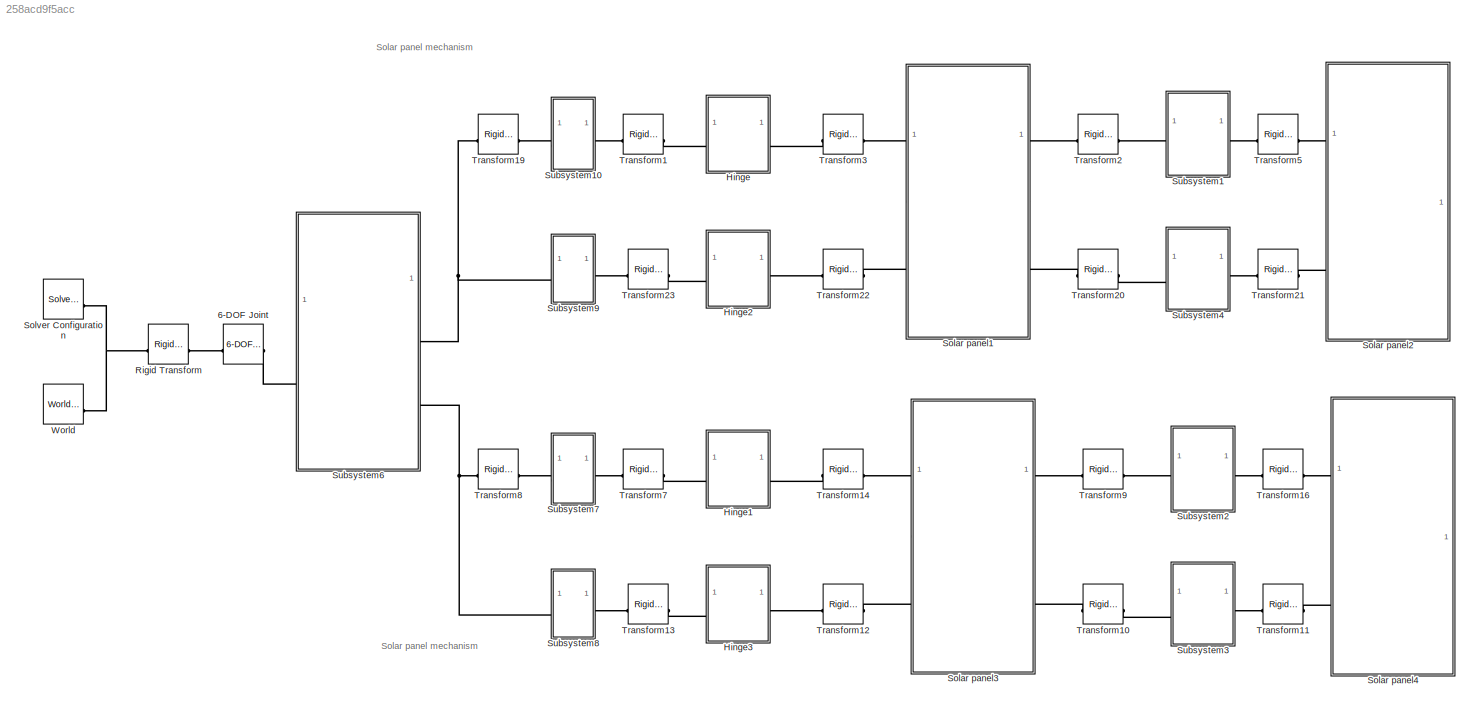
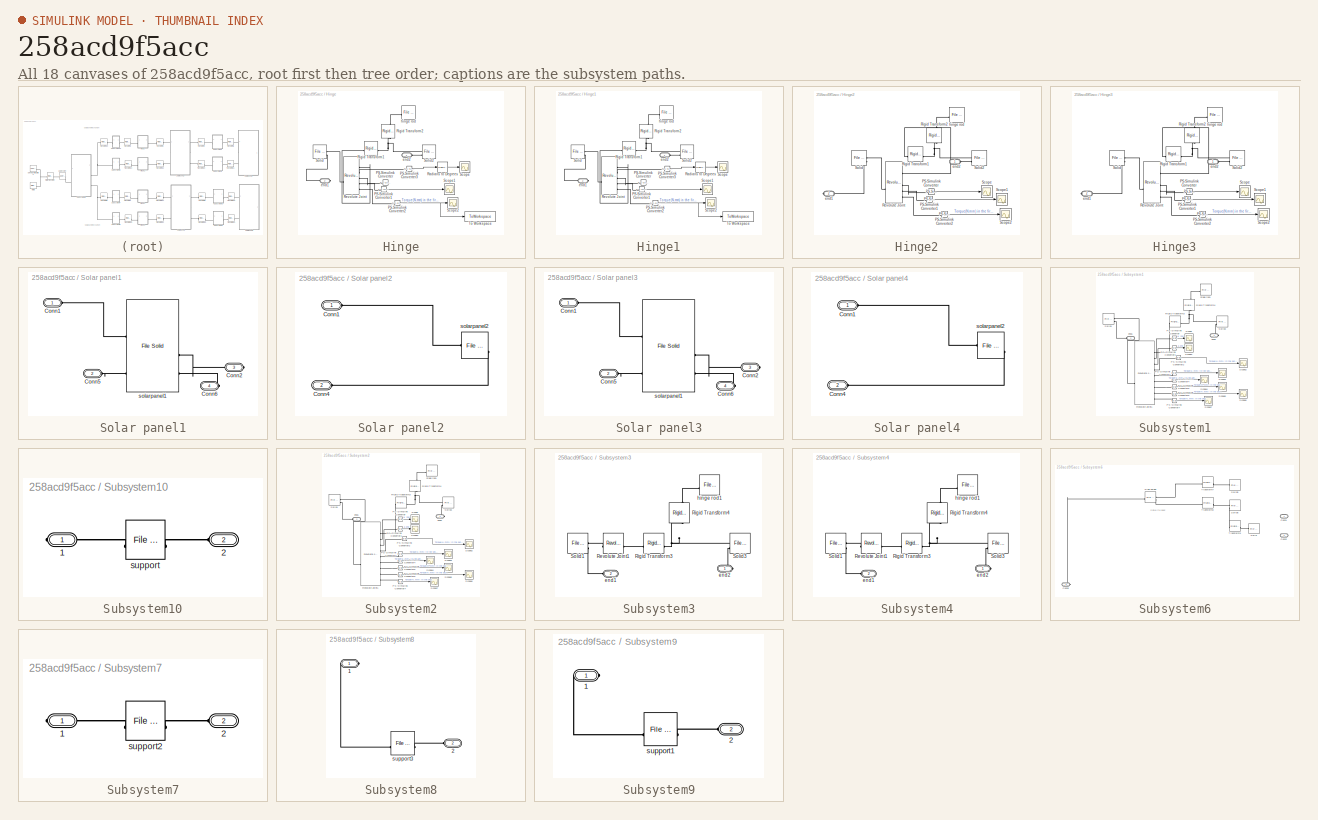
[diagram: thumbnail index - all 18 canvases of the model, root first then tree order]
MODEL slx_258acd9f5acc
KIND model
CONFIG AbsTol = auto
CONFIG EnableMultiTasking = off
CONFIG FixedStep = 0.01
CONFIG MaxStep = auto
CONFIG MinStep = auto
CONFIG RelTol = 1e-3
CONFIG SampleTimeConstraint = Unconstrained
CONFIG SolverName = ode14x
CONFIG StartTime = 0.0
CONFIG StopTime = 6
BLOCK [Reference] 6-DOF Joint  REF=sm_lib/Joints/6-DOF Joint
  SourceBlock = sm_lib/Joints/6-DOF Joint
  SourceType = 6-DOF Joint
BLOCK [SubSystem] Hinge
BLOCK [Reference] Hinge/PS-Simulink Converter  REF=nesl_utility/PS-Simulink
Converter
  SourceBlock = nesl_utility/PS-Simulink\nConverter
  SourceType = PS-Simulink\nConverter
BLOCK [Reference] Hinge/PS-Simulink Converter1  REF=nesl_utility/PS-Simulink
Converter
  SourceBlock = nesl_utility/PS-Simulink\nConverter
  SourceType = PS-Simulink\nConverter
BLOCK [Reference] Hinge/PS-Simulink Converter2  REF=nesl_utility/PS-Simulink
Converter
  SourceBlock = nesl_utility/PS-Simulink\nConverter
  SourceType = PS-Simulink\nConverter
BLOCK [Reference] Hinge/PS-Simulink Converter3  REF=nesl_utility/PS-Simulink
Converter
  SourceBlock = nesl_utility/PS-Simulink\nConverter
  SourceType = PS-Simulink\nConverter
BLOCK [Reference] Hinge/Radians to Degrees  REF=simulink_extras/Transformations/Radians
to Degrees
  SourceBlock = simulink_extras/Transformations/Radians\nto Degrees
  SourceType = RadiansToDegrees
BLOCK [Reference] Hinge/Revolute Joint  REF=sm_lib/Joints/Revolute Joint
  SourceBlock = sm_lib/Joints/Revolute Joint
  SourceType = Revolute Joint
BLOCK [Reference] Hinge/Rigid Transform1  REF=sm_lib/Frames and
Transforms/Rigid
Transform
  NameLocation = top
  SourceBlock = sm_lib/Frames and\nTransforms/Rigid\nTransform
  SourceType = Rigid\nTransform
BLOCK [Reference] Hinge/Rigid Transform2  REF=sm_lib/Frames and
Transforms/Rigid
Transform
  NameLocation = left
  SourceBlock = sm_lib/Frames and\nTransforms/Rigid\nTransform
  SourceType = Rigid\nTransform
BLOCK [Scope] Hinge/Scope
  Floating = off
  NumInputPorts = 1
  ScopeSpecificationString = Simulink.scopes.TimeScopeBlockCfg('CurrentConfiguration', extmgr.ConfigurationSet(extmgr.Configuration('Core','General UI',true),extmgr.Configuration('Core','Source UI',true),extmgr.Configuration('Sources','WiredSimulink',true),extmgr.Configuration('Visuals','Time Domain',true,'SerializedDisplays',{struct('MinYLimReal','-99.14047','MaxYLimReal','8.57','YLabelReal','','MinYLimMag','0.00000','MaxYLi...<+1481ch>
BLOCK [Scope] Hinge/Scope1
  Floating = off
  NumInputPorts = 1
  ScopeSpecificationString = Simulink.scopes.TimeScopeBlockCfg('CurrentConfiguration', extmgr.ConfigurationSet(extmgr.Configuration('Core','General UI',true),extmgr.Configuration('Core','Source UI',true),extmgr.Configuration('Sources','WiredSimulink',true,'DataLoggingVariableName','ScopeData1'),extmgr.Configuration('Visuals','Time Domain',true,'SerializedDisplays',{struct('MinYLimReal','-1753.28291','MaxYLimReal','197.04192',...<+1518ch>  <repeated x4 — deduplicated; at blocks: Scope1>
BLOCK [Scope] Hinge/Scope2
  Floating = off
  NumInputPorts = 1
  ScopeSpecificationString = Simulink.scopes.TimeScopeBlockCfg('CurrentConfiguration', extmgr.ConfigurationSet(extmgr.Configuration('Core','General UI',true),extmgr.Configuration('Core','Source UI',true),extmgr.Configuration('Sources','WiredSimulink',true,'DataLoggingVariableName','ScopeData4'),extmgr.Configuration('Visuals','Time Domain',true,'SerializedDisplays',{struct('MinYLimReal','-3.00037','MaxYLimReal','1.0055','YLabe...<+2082ch>
BLOCK [Reference] Hinge/Solid  REF=sm_lib/Body Elements/File Solid
  NameLocation = top
  SourceBlock = sm_lib/Body Elements/File Solid
  SourceType = File Solid
BLOCK [Reference] Hinge/Solid2  REF=sm_lib/Body Elements/File Solid
  SourceBlock = sm_lib/Body Elements/File Solid
  SourceType = File Solid
BLOCK [ToWorkspace] Hinge/To Workspace
  FixptAsFi = on
  MaxDataPoints = inf
  SampleTime = -1
  SaveFormat = Timeseries
  VariableName = simout
BLOCK [PMIOPort] Hinge/end1
  Port = 2
  Side = Right
BLOCK [PMIOPort] Hinge/end2
  Side = Left
BLOCK [Reference] Hinge/hinge rod  REF=sm_lib/Body Elements/File Solid
  SourceBlock = sm_lib/Body Elements/File Solid
  SourceType = File Solid
BLOCK [SubSystem] Hinge1
BLOCK [Reference] Hinge1/PS-Simulink Converter  REF=nesl_utility/PS-Simulink
Converter
  SourceBlock = nesl_utility/PS-Simulink\nConverter
  SourceType = PS-Simulink\nConverter
BLOCK [Reference] Hinge1/PS-Simulink Converter1  REF=nesl_utility/PS-Simulink
Converter
  SourceBlock = nesl_utility/PS-Simulink\nConverter
  SourceType = PS-Simulink\nConverter
BLOCK [Reference] Hinge1/PS-Simulink Converter2  REF=nesl_utility/PS-Simulink
Converter
  SourceBlock = nesl_utility/PS-Simulink\nConverter
  SourceType = PS-Simulink\nConverter
BLOCK [Reference] Hinge1/PS-Simulink Converter3  REF=nesl_utility/PS-Simulink
Converter
  SourceBlock = nesl_utility/PS-Simulink\nConverter
  SourceType = PS-Simulink\nConverter
BLOCK [Reference] Hinge1/Radians to Degrees  REF=simulink_extras/Transformations/Radians
to Degrees
  SourceBlock = simulink_extras/Transformations/Radians\nto Degrees
  SourceType = RadiansToDegrees
BLOCK [Reference] Hinge1/Revolute Joint  REF=sm_lib/Joints/Revolute Joint
  SourceBlock = sm_lib/Joints/Revolute Joint
  SourceType = Revolute Joint
BLOCK [Reference] Hinge1/Rigid Transform1  REF=sm_lib/Frames and
Transforms/Rigid
Transform
  NameLocation = top
  SourceBlock = sm_lib/Frames and\nTransforms/Rigid\nTransform
  SourceType = Rigid\nTransform
BLOCK [Reference] Hinge1/Rigid Transform2  REF=sm_lib/Frames and
Transforms/Rigid
Transform
  NameLocation = left
  SourceBlock = sm_lib/Frames and\nTransforms/Rigid\nTransform
  SourceType = Rigid\nTransform
BLOCK [Scope] Hinge1/Scope
  Floating = off
  NumInputPorts = 1
  ScopeSpecificationString = Simulink.scopes.TimeScopeBlockCfg('CurrentConfiguration', extmgr.ConfigurationSet(extmgr.Configuration('Core','General UI',true),extmgr.Configuration('Core','Source UI',true),extmgr.Configuration('Sources','WiredSimulink',true),extmgr.Configuration('Visuals','Time Domain',true,'SerializedDisplays',{struct('MinYLimReal','-99.14047','MaxYLimReal','8.57','YLabelReal','','MinYLimMag','0.00000','MaxYLi...<+1481ch>
BLOCK [Scope] Hinge1/Scope1
  Floating = off
  NumInputPorts = 1
BLOCK [Scope] Hinge1/Scope2
  Floating = off
  NumInputPorts = 1
  ScopeSpecificationString = Simulink.scopes.TimeScopeBlockCfg('CurrentConfiguration', extmgr.ConfigurationSet(extmgr.Configuration('Core','General UI',true),extmgr.Configuration('Core','Source UI',true),extmgr.Configuration('Sources','WiredSimulink',true,'DataLoggingVariableName','ScopeData4'),extmgr.Configuration('Visuals','Time Domain',true,'SerializedDisplays',{struct('MinYLimReal','-3.00037','MaxYLimReal','1.0055','YLabe...<+2082ch>
BLOCK [Reference] Hinge1/Solid  REF=sm_lib/Body Elements/File Solid
  NameLocation = top
  SourceBlock = sm_lib/Body Elements/File Solid
  SourceType = File Solid
BLOCK [Reference] Hinge1/Solid2  REF=sm_lib/Body Elements/File Solid
  SourceBlock = sm_lib/Body Elements/File Solid
  SourceType = File Solid
BLOCK [ToWorkspace] Hinge1/To Workspace
  FixptAsFi = on
  MaxDataPoints = inf
  SampleTime = -1
  SaveFormat = Timeseries
  VariableName = simout
BLOCK [PMIOPort] Hinge1/end1
  Port = 2
  Side = Right
BLOCK [PMIOPort] Hinge1/end2
  Side = Left
BLOCK [Reference] Hinge1/hinge rod  REF=sm_lib/Body Elements/File Solid
  SourceBlock = sm_lib/Body Elements/File Solid
  SourceType = File Solid
BLOCK [SubSystem] Hinge2
BLOCK [Reference] Hinge2/PS-Simulink Converter  REF=nesl_utility/PS-Simulink
Converter
  SourceBlock = nesl_utility/PS-Simulink\nConverter
  SourceType = PS-Simulink\nConverter
BLOCK [Reference] Hinge2/PS-Simulink Converter1  REF=nesl_utility/PS-Simulink
Converter
  SourceBlock = nesl_utility/PS-Simulink\nConverter
  SourceType = PS-Simulink\nConverter
BLOCK [Reference] Hinge2/PS-Simulink Converter2  REF=nesl_utility/PS-Simulink
Converter
  SourceBlock = nesl_utility/PS-Simulink\nConverter
  SourceType = PS-Simulink\nConverter
BLOCK [Reference] Hinge2/Revolute Joint  REF=sm_lib/Joints/Revolute Joint
  SourceBlock = sm_lib/Joints/Revolute Joint
  SourceType = Revolute Joint
BLOCK [Reference] Hinge2/Rigid Transform1  REF=sm_lib/Frames and
Transforms/Rigid
Transform
  NameLocation = top
  SourceBlock = sm_lib/Frames and\nTransforms/Rigid\nTransform
  SourceType = Rigid\nTransform
BLOCK [Reference] Hinge2/Rigid Transform2  REF=sm_lib/Frames and
Transforms/Rigid
Transform
  NameLocation = left
  SourceBlock = sm_lib/Frames and\nTransforms/Rigid\nTransform
  SourceType = Rigid\nTransform
BLOCK [Scope] Hinge2/Scope
  Floating = off
  NumInputPorts = 1
  ScopeSpecificationString = Simulink.scopes.TimeScopeBlockCfg('CurrentConfiguration', extmgr.ConfigurationSet(extmgr.Configuration('Core','General UI',true),extmgr.Configuration('Core','Source UI',true),extmgr.Configuration('Sources','WiredSimulink',true),extmgr.Configuration('Visuals','Time Domain',true,'SerializedDisplays',{struct('MinYLimReal','-0.18366','MaxYLimReal','1.65292','YLabelReal','','MinYLimMag','0.00000','MaxY...<+1430ch>
BLOCK [Scope] Hinge2/Scope1
  Floating = off
  NumInputPorts = 1
BLOCK [Scope] Hinge2/Scope2
  Floating = off
  NumInputPorts = 1
  ScopeSpecificationString = Simulink.scopes.TimeScopeBlockCfg('CurrentConfiguration', extmgr.ConfigurationSet(extmgr.Configuration('Core','General UI',true),extmgr.Configuration('Core','Source UI',true),extmgr.Configuration('Sources','WiredSimulink',true,'DataLoggingVariableName','ScopeData4'),extmgr.Configuration('Visuals','Time Domain',true,'SerializedDisplays',{struct('MinYLimReal','-1.60374','MaxYLimReal','0.83366','YLab...<+2029ch>
BLOCK [Reference] Hinge2/Solid  REF=sm_lib/Body Elements/File Solid
  NameLocation = top
  SourceBlock = sm_lib/Body Elements/File Solid
  SourceType = File Solid
BLOCK [Reference] Hinge2/Solid2  REF=sm_lib/Body Elements/File Solid
  SourceBlock = sm_lib/Body Elements/File Solid
  SourceType = File Solid
BLOCK [PMIOPort] Hinge2/end1
  NameLocation = top
  Port = 2
  Side = Right
BLOCK [PMIOPort] Hinge2/end2
  Side = Left
BLOCK [Reference] Hinge2/hinge rod  REF=sm_lib/Body Elements/File Solid
  SourceBlock = sm_lib/Body Elements/File Solid
  SourceType = File Solid
BLOCK [SubSystem] Hinge3
BLOCK [Reference] Hinge3/PS-Simulink Converter  REF=nesl_utility/PS-Simulink
Converter
  SourceBlock = nesl_utility/PS-Simulink\nConverter
  SourceType = PS-Simulink\nConverter
BLOCK [Reference] Hinge3/PS-Simulink Converter1  REF=nesl_utility/PS-Simulink
Converter
  SourceBlock = nesl_utility/PS-Simulink\nConverter
  SourceType = PS-Simulink\nConverter
BLOCK [Reference] Hinge3/PS-Simulink Converter2  REF=nesl_utility/PS-Simulink
Converter
  SourceBlock = nesl_utility/PS-Simulink\nConverter
  SourceType = PS-Simulink\nConverter
BLOCK [Reference] Hinge3/Revolute Joint  REF=sm_lib/Joints/Revolute Joint
  SourceBlock = sm_lib/Joints/Revolute Joint
  SourceType = Revolute Joint
BLOCK [Reference] Hinge3/Rigid Transform1  REF=sm_lib/Frames and
Transforms/Rigid
Transform
  NameLocation = top
  SourceBlock = sm_lib/Frames and\nTransforms/Rigid\nTransform
  SourceType = Rigid\nTransform
BLOCK [Reference] Hinge3/Rigid Transform2  REF=sm_lib/Frames and
Transforms/Rigid
Transform
  NameLocation = left
  SourceBlock = sm_lib/Frames and\nTransforms/Rigid\nTransform
  SourceType = Rigid\nTransform
BLOCK [Scope] Hinge3/Scope
  Floating = off
  NumInputPorts = 1
  ScopeSpecificationString = Simulink.scopes.TimeScopeBlockCfg('CurrentConfiguration', extmgr.ConfigurationSet(extmgr.Configuration('Core','General UI',true),extmgr.Configuration('Core','Source UI',true),extmgr.Configuration('Sources','WiredSimulink',true),extmgr.Configuration('Visuals','Time Domain',true,'SerializedDisplays',{struct('MinYLimReal','-0.18366','MaxYLimReal','1.65292','YLabelReal','','MinYLimMag','0.00000','MaxY...<+1430ch>
BLOCK [Scope] Hinge3/Scope1
  Floating = off
  NumInputPorts = 1
BLOCK [Scope] Hinge3/Scope2
  Floating = off
  NumInputPorts = 1
  ScopeSpecificationString = Simulink.scopes.TimeScopeBlockCfg('CurrentConfiguration', extmgr.ConfigurationSet(extmgr.Configuration('Core','General UI',true),extmgr.Configuration('Core','Source UI',true),extmgr.Configuration('Sources','WiredSimulink',true,'DataLoggingVariableName','ScopeData4'),extmgr.Configuration('Visuals','Time Domain',true,'SerializedDisplays',{struct('MinYLimReal','-1.60374','MaxYLimReal','0.83366','YLab...<+2029ch>
BLOCK [Reference] Hinge3/Solid  REF=sm_lib/Body Elements/File Solid
  NameLocation = top
  SourceBlock = sm_lib/Body Elements/File Solid
  SourceType = File Solid
BLOCK [Reference] Hinge3/Solid2  REF=sm_lib/Body Elements/File Solid
  SourceBlock = sm_lib/Body Elements/File Solid
  SourceType = File Solid
BLOCK [PMIOPort] Hinge3/end1
  NameLocation = top
  Port = 2
  Side = Right
BLOCK [PMIOPort] Hinge3/end2
  Side = Left
BLOCK [Reference] Hinge3/hinge rod  REF=sm_lib/Body Elements/File Solid
  SourceBlock = sm_lib/Body Elements/File Solid
  SourceType = File Solid
BLOCK [Reference] Rigid Transform  REF=sm_lib/Frames and
Transforms/Rigid
Transform
  SourceBlock = sm_lib/Frames and\nTransforms/Rigid\nTransform
  SourceType = Rigid\nTransform
BLOCK [SubSystem] Solar panel1
BLOCK [PMIOPort] Solar panel1/Conn1
  Side = Left
BLOCK [PMIOPort] Solar panel1/Conn2
  Port = 3
  Side = Right
BLOCK [PMIOPort] Solar panel1/Conn5
  Port = 2
  Side = Left
BLOCK [PMIOPort] Solar panel1/Conn6
  Port = 4
  Side = Right
BLOCK [Reference] Solar panel1/solarpanel1  REF=sm_lib/Body Elements/File Solid
  SourceBlock = sm_lib/Body Elements/File Solid
  SourceType = File Solid
BLOCK [SubSystem] Solar panel2
BLOCK [PMIOPort] Solar panel2/Conn1
  Side = Left
BLOCK [PMIOPort] Solar panel2/Conn4
  Port = 2
  Side = Left
BLOCK [Reference] Solar panel2/solarpanel2  REF=sm_lib/Body Elements/File Solid
  SourceBlock = sm_lib/Body Elements/File Solid
  SourceType = File Solid
BLOCK [SubSystem] Solar panel3
BLOCK [PMIOPort] Solar panel3/Conn1
  Side = Left
BLOCK [PMIOPort] Solar panel3/Conn2
  Port = 3
  Side = Right
BLOCK [PMIOPort] Solar panel3/Conn5
  Port = 2
  Side = Left
BLOCK [PMIOPort] Solar panel3/Conn6
  Port = 4
  Side = Right
BLOCK [Reference] Solar panel3/solarpanel1  REF=sm_lib/Body Elements/File Solid
  SourceBlock = sm_lib/Body Elements/File Solid
  SourceType = File Solid
BLOCK [SubSystem] Solar panel4
BLOCK [PMIOPort] Solar panel4/Conn1
  Side = Left
BLOCK [PMIOPort] Solar panel4/Conn4
  Port = 2
  Side = Left
BLOCK [Reference] Solar panel4/solarpanel2  REF=sm_lib/Body Elements/File Solid
  SourceBlock = sm_lib/Body Elements/File Solid
  SourceType = File Solid
BLOCK [Reference] Solver Configuration  REF=nesl_utility/Solver
Configuration
  SourceBlock = nesl_utility/Solver\nConfiguration
  SourceType = Solver\nConfiguration
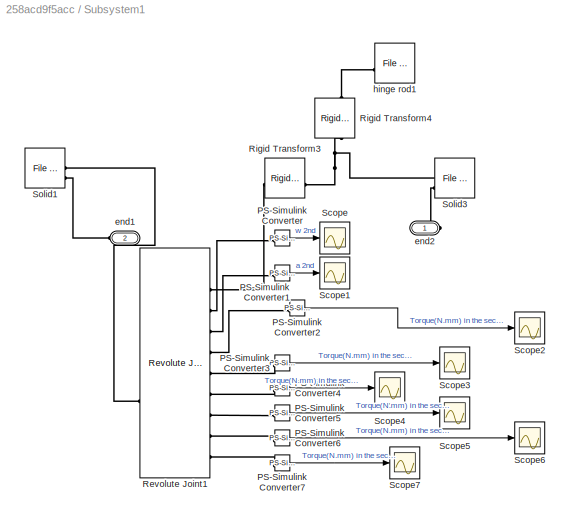
BLOCK [SubSystem] Subsystem1
  NameLocation = top
BLOCK [Reference] Subsystem1/PS-Simulink Converter  REF=nesl_utility/PS-Simulink
Converter
  SourceBlock = nesl_utility/PS-Simulink\nConverter
  SourceType = PS-Simulink\nConverter
BLOCK [Reference] Subsystem1/PS-Simulink Converter1  REF=nesl_utility/PS-Simulink
Converter
  SourceBlock = nesl_utility/PS-Simulink\nConverter
  SourceType = PS-Simulink\nConverter
BLOCK [Reference] Subsystem1/PS-Simulink Converter2  REF=nesl_utility/PS-Simulink
Converter
  SourceBlock = nesl_utility/PS-Simulink\nConverter
  SourceType = PS-Simulink\nConverter
BLOCK [Reference] Subsystem1/PS-Simulink Converter3  REF=nesl_utility/PS-Simulink
Converter
  SourceBlock = nesl_utility/PS-Simulink\nConverter
  SourceType = PS-Simulink\nConverter
BLOCK [Reference] Subsystem1/PS-Simulink Converter4  REF=nesl_utility/PS-Simulink
Converter
  SourceBlock = nesl_utility/PS-Simulink\nConverter
  SourceType = PS-Simulink\nConverter
BLOCK [Reference] Subsystem1/PS-Simulink Converter5  REF=nesl_utility/PS-Simulink
Converter
  SourceBlock = nesl_utility/PS-Simulink\nConverter
  SourceType = PS-Simulink\nConverter
BLOCK [Reference] Subsystem1/PS-Simulink Converter6  REF=nesl_utility/PS-Simulink
Converter
  SourceBlock = nesl_utility/PS-Simulink\nConverter
  SourceType = PS-Simulink\nConverter
BLOCK [Reference] Subsystem1/PS-Simulink Converter7  REF=nesl_utility/PS-Simulink
Converter
  SourceBlock = nesl_utility/PS-Simulink\nConverter
  SourceType = PS-Simulink\nConverter
BLOCK [Reference] Subsystem1/Revolute Joint1  REF=sm_lib/Joints/Revolute Joint
  SourceBlock = sm_lib/Joints/Revolute Joint
  SourceType = Revolute Joint
BLOCK [Reference] Subsystem1/Rigid Transform3  REF=sm_lib/Frames and
Transforms/Rigid
Transform
  NameLocation = top
  SourceBlock = sm_lib/Frames and\nTransforms/Rigid\nTransform
  SourceType = Rigid\nTransform
BLOCK [Reference] Subsystem1/Rigid Transform4  REF=sm_lib/Frames and
Transforms/Rigid
Transform
  NameLocation = left
  SourceBlock = sm_lib/Frames and\nTransforms/Rigid\nTransform
  SourceType = Rigid\nTransform
BLOCK [Scope] Subsystem1/Scope
  Floating = off
  NumInputPorts = 1
  ScopeSpecificationString = Simulink.scopes.TimeScopeBlockCfg('CurrentConfiguration', extmgr.ConfigurationSet(extmgr.Configuration('Core','General UI',true),extmgr.Configuration('Core','Source UI',true),extmgr.Configuration('Sources','WiredSimulink',true,'DataLoggingVariableName','ScopeData2'),extmgr.Configuration('Visuals','Time Domain',true,'SerializedDisplays',{struct('MinYLimReal','-0.19409','MaxYLimReal','1.74681','YLab...<+1453ch>
BLOCK [Scope] Subsystem1/Scope1
  Floating = off
  NumInputPorts = 1
  ScopeSpecificationString = Simulink.scopes.TimeScopeBlockCfg('CurrentConfiguration', extmgr.ConfigurationSet(extmgr.Configuration('Core','General UI',true),extmgr.Configuration('Core','Source UI',true),extmgr.Configuration('Sources','WiredSimulink',true,'DataLoggingVariableName','ScopeData3'),extmgr.Configuration('Visuals','Time Domain',true,'SerializedDisplays',{struct('MinYLimReal','-4.51119','MaxYLimReal','-2.09509','YLa...<+1553ch>
BLOCK [Scope] Subsystem1/Scope2
  Floating = off
  NumInputPorts = 1
  ScopeSpecificationString = Simulink.scopes.TimeScopeBlockCfg('CurrentConfiguration', extmgr.ConfigurationSet(extmgr.Configuration('Core','General UI',true),extmgr.Configuration('Core','Source UI',true),extmgr.Configuration('Sources','WiredSimulink',true,'DataLoggingVariableName','ScopeData5'),extmgr.Configuration('Visuals','Time Domain',true,'SerializedDisplays',{struct('MinYLimReal','-1.00000','MaxYLimReal','1.00000','YLab...<+1958ch>
BLOCK [Scope] Subsystem1/Scope3
  Floating = off
  NumInputPorts = 1
  ScopeSpecificationString = Simulink.scopes.TimeScopeBlockCfg('CurrentConfiguration', extmgr.ConfigurationSet(extmgr.Configuration('Core','General UI',true),extmgr.Configuration('Core','Source UI',true),extmgr.Configuration('Sources','WiredSimulink',true,'DataLoggingVariableName','ScopeData1'),extmgr.Configuration('Visuals','Time Domain',true,'SerializedDisplays',{struct('MinYLimReal','-1.00000','MaxYLimReal','1.00000','YLab...<+1958ch>
BLOCK [Scope] Subsystem1/Scope4
  Floating = off
  NumInputPorts = 1
  ScopeSpecificationString = Simulink.scopes.TimeScopeBlockCfg('CurrentConfiguration', extmgr.ConfigurationSet(extmgr.Configuration('Core','General UI',true),extmgr.Configuration('Core','Source UI',true),extmgr.Configuration('Sources','WiredSimulink',true,'DataLoggingVariableName','ScopeData2'),extmgr.Configuration('Visuals','Time Domain',true,'SerializedDisplays',{struct('MinYLimReal','-3644.6639','MaxYLimReal','4321.97514',...<+1978ch>
BLOCK [Scope] Subsystem1/Scope5
  Floating = off
  NumInputPorts = 1
  ScopeSpecificationString = Simulink.scopes.TimeScopeBlockCfg('CurrentConfiguration', extmgr.ConfigurationSet(extmgr.Configuration('Core','General UI',true),extmgr.Configuration('Core','Source UI',true),extmgr.Configuration('Sources','WiredSimulink',true,'DataLoggingVariableName','ScopeData3'),extmgr.Configuration('Visuals','Time Domain',true,'SerializedDisplays',{struct('MinYLimReal','-3644.6639','MaxYLimReal','4321.97514',...<+2054ch>
BLOCK [Scope] Subsystem1/Scope6
  Floating = off
  NumInputPorts = 1
  ScopeSpecificationString = Simulink.scopes.TimeScopeBlockCfg('CurrentConfiguration', extmgr.ConfigurationSet(extmgr.Configuration('Core','General UI',true),extmgr.Configuration('Core','Source UI',true),extmgr.Configuration('Sources','WiredSimulink',true,'DataLoggingVariableName','ScopeData4'),extmgr.Configuration('Visuals','Time Domain',true,'SerializedDisplays',{struct('MinYLimReal','-50.59757','MaxYLimReal','6.53088','YLa...<+2038ch>
BLOCK [Scope] Subsystem1/Scope7
  Floating = off
  NumInputPorts = 1
  ScopeSpecificationString = Simulink.scopes.TimeScopeBlockCfg('CurrentConfiguration', extmgr.ConfigurationSet(extmgr.Configuration('Core','General UI',true),extmgr.Configuration('Core','Source UI',true),extmgr.Configuration('Sources','WiredSimulink',true,'DataLoggingVariableName','ScopeData5'),extmgr.Configuration('Visuals','Time Domain',true,'SerializedDisplays',{struct('MinYLimReal','-0.99336','MaxYLimReal','1.46729','YLab...<+2084ch>
BLOCK [Reference] Subsystem1/Solid1  REF=sm_lib/Body Elements/File Solid
  NameLocation = top
  SourceBlock = sm_lib/Body Elements/File Solid
  SourceType = File Solid
BLOCK [Reference] Subsystem1/Solid3  REF=sm_lib/Body Elements/File Solid
  SourceBlock = sm_lib/Body Elements/File Solid
  SourceType = File Solid
BLOCK [PMIOPort] Subsystem1/end1
  Port = 2
  Side = Left
BLOCK [PMIOPort] Subsystem1/end2
  Side = Right
BLOCK [Reference] Subsystem1/hinge rod1  REF=sm_lib/Body Elements/File Solid
  SourceBlock = sm_lib/Body Elements/File Solid
  SourceType = File Solid
BLOCK [SubSystem] Subsystem10
BLOCK [PMIOPort] Subsystem10/1
  Side = Right
BLOCK [PMIOPort] Subsystem10/2
  Port = 2
  Side = Left
BLOCK [Reference] Subsystem10/support  REF=sm_lib/Body Elements/File Solid
  NameLocation = top
  SourceBlock = sm_lib/Body Elements/File Solid
  SourceType = File Solid
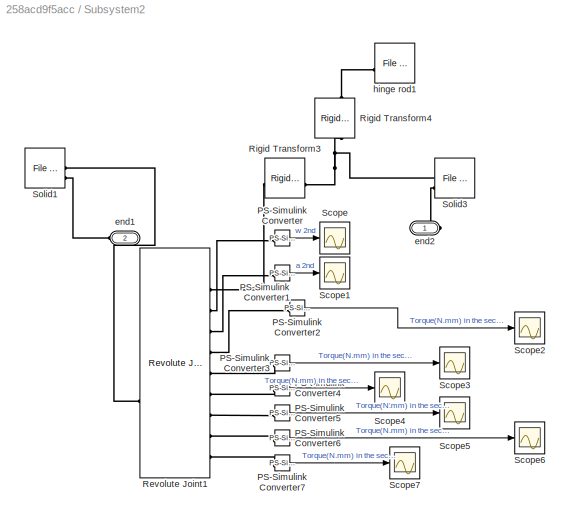
BLOCK [SubSystem] Subsystem2
  NameLocation = top
BLOCK [Reference] Subsystem2/PS-Simulink Converter  REF=nesl_utility/PS-Simulink
Converter
  SourceBlock = nesl_utility/PS-Simulink\nConverter
  SourceType = PS-Simulink\nConverter
BLOCK [Reference] Subsystem2/PS-Simulink Converter1  REF=nesl_utility/PS-Simulink
Converter
  SourceBlock = nesl_utility/PS-Simulink\nConverter
  SourceType = PS-Simulink\nConverter
BLOCK [Reference] Subsystem2/PS-Simulink Converter2  REF=nesl_utility/PS-Simulink
Converter
  SourceBlock = nesl_utility/PS-Simulink\nConverter
  SourceType = PS-Simulink\nConverter
BLOCK [Reference] Subsystem2/PS-Simulink Converter3  REF=nesl_utility/PS-Simulink
Converter
  SourceBlock = nesl_utility/PS-Simulink\nConverter
  SourceType = PS-Simulink\nConverter
BLOCK [Reference] Subsystem2/PS-Simulink Converter4  REF=nesl_utility/PS-Simulink
Converter
  SourceBlock = nesl_utility/PS-Simulink\nConverter
  SourceType = PS-Simulink\nConverter
BLOCK [Reference] Subsystem2/PS-Simulink Converter5  REF=nesl_utility/PS-Simulink
Converter
  SourceBlock = nesl_utility/PS-Simulink\nConverter
  SourceType = PS-Simulink\nConverter
BLOCK [Reference] Subsystem2/PS-Simulink Converter6  REF=nesl_utility/PS-Simulink
Converter
  SourceBlock = nesl_utility/PS-Simulink\nConverter
  SourceType = PS-Simulink\nConverter
BLOCK [Reference] Subsystem2/PS-Simulink Converter7  REF=nesl_utility/PS-Simulink
Converter
  SourceBlock = nesl_utility/PS-Simulink\nConverter
  SourceType = PS-Simulink\nConverter
BLOCK [Reference] Subsystem2/Revolute Joint1  REF=sm_lib/Joints/Revolute Joint
  SourceBlock = sm_lib/Joints/Revolute Joint
  SourceType = Revolute Joint
BLOCK [Reference] Subsystem2/Rigid Transform3  REF=sm_lib/Frames and
Transforms/Rigid
Transform
  NameLocation = top
  SourceBlock = sm_lib/Frames and\nTransforms/Rigid\nTransform
  SourceType = Rigid\nTransform
BLOCK [Reference] Subsystem2/Rigid Transform4  REF=sm_lib/Frames and
Transforms/Rigid
Transform
  NameLocation = left
  SourceBlock = sm_lib/Frames and\nTransforms/Rigid\nTransform
  SourceType = Rigid\nTransform
BLOCK [Scope] Subsystem2/Scope
  Floating = off
  NumInputPorts = 1
  ScopeSpecificationString = Simulink.scopes.TimeScopeBlockCfg('CurrentConfiguration', extmgr.ConfigurationSet(extmgr.Configuration('Core','General UI',true),extmgr.Configuration('Core','Source UI',true),extmgr.Configuration('Sources','WiredSimulink',true,'DataLoggingVariableName','ScopeData2'),extmgr.Configuration('Visuals','Time Domain',true,'SerializedDisplays',{struct('MinYLimReal','-0.19409','MaxYLimReal','1.74681','YLab...<+1453ch>
BLOCK [Scope] Subsystem2/Scope1
  Floating = off
  NumInputPorts = 1
  ScopeSpecificationString = Simulink.scopes.TimeScopeBlockCfg('CurrentConfiguration', extmgr.ConfigurationSet(extmgr.Configuration('Core','General UI',true),extmgr.Configuration('Core','Source UI',true),extmgr.Configuration('Sources','WiredSimulink',true,'DataLoggingVariableName','ScopeData3'),extmgr.Configuration('Visuals','Time Domain',true,'SerializedDisplays',{struct('MinYLimReal','-4.51119','MaxYLimReal','-2.09509','YLa...<+1553ch>
BLOCK [Scope] Subsystem2/Scope2
  Floating = off
  NumInputPorts = 1
  ScopeSpecificationString = Simulink.scopes.TimeScopeBlockCfg('CurrentConfiguration', extmgr.ConfigurationSet(extmgr.Configuration('Core','General UI',true),extmgr.Configuration('Core','Source UI',true),extmgr.Configuration('Sources','WiredSimulink',true,'DataLoggingVariableName','ScopeData5'),extmgr.Configuration('Visuals','Time Domain',true,'SerializedDisplays',{struct('MinYLimReal','-1.00000','MaxYLimReal','1.00000','YLab...<+1958ch>
BLOCK [Scope] Subsystem2/Scope3
  Floating = off
  NumInputPorts = 1
  ScopeSpecificationString = Simulink.scopes.TimeScopeBlockCfg('CurrentConfiguration', extmgr.ConfigurationSet(extmgr.Configuration('Core','General UI',true),extmgr.Configuration('Core','Source UI',true),extmgr.Configuration('Sources','WiredSimulink',true,'DataLoggingVariableName','ScopeData1'),extmgr.Configuration('Visuals','Time Domain',true,'SerializedDisplays',{struct('MinYLimReal','-1.00000','MaxYLimReal','1.00000','YLab...<+1958ch>
BLOCK [Scope] Subsystem2/Scope4
  Floating = off
  NumInputPorts = 1
  ScopeSpecificationString = Simulink.scopes.TimeScopeBlockCfg('CurrentConfiguration', extmgr.ConfigurationSet(extmgr.Configuration('Core','General UI',true),extmgr.Configuration('Core','Source UI',true),extmgr.Configuration('Sources','WiredSimulink',true,'DataLoggingVariableName','ScopeData2'),extmgr.Configuration('Visuals','Time Domain',true,'SerializedDisplays',{struct('MinYLimReal','-3644.6639','MaxYLimReal','4321.97514',...<+1978ch>
BLOCK [Scope] Subsystem2/Scope5
  Floating = off
  NumInputPorts = 1
  ScopeSpecificationString = Simulink.scopes.TimeScopeBlockCfg('CurrentConfiguration', extmgr.ConfigurationSet(extmgr.Configuration('Core','General UI',true),extmgr.Configuration('Core','Source UI',true),extmgr.Configuration('Sources','WiredSimulink',true,'DataLoggingVariableName','ScopeData3'),extmgr.Configuration('Visuals','Time Domain',true,'SerializedDisplays',{struct('MinYLimReal','-3644.6639','MaxYLimReal','4321.97514',...<+2054ch>
BLOCK [Scope] Subsystem2/Scope6
  Floating = off
  NumInputPorts = 1
  ScopeSpecificationString = Simulink.scopes.TimeScopeBlockCfg('CurrentConfiguration', extmgr.ConfigurationSet(extmgr.Configuration('Core','General UI',true),extmgr.Configuration('Core','Source UI',true),extmgr.Configuration('Sources','WiredSimulink',true,'DataLoggingVariableName','ScopeData4'),extmgr.Configuration('Visuals','Time Domain',true,'SerializedDisplays',{struct('MinYLimReal','-50.59757','MaxYLimReal','6.53088','YLa...<+2038ch>
BLOCK [Scope] Subsystem2/Scope7
  Floating = off
  NumInputPorts = 1
  ScopeSpecificationString = Simulink.scopes.TimeScopeBlockCfg('CurrentConfiguration', extmgr.ConfigurationSet(extmgr.Configuration('Core','General UI',true),extmgr.Configuration('Core','Source UI',true),extmgr.Configuration('Sources','WiredSimulink',true,'DataLoggingVariableName','ScopeData5'),extmgr.Configuration('Visuals','Time Domain',true,'SerializedDisplays',{struct('MinYLimReal','-0.99336','MaxYLimReal','1.46729','YLab...<+2084ch>
BLOCK [Reference] Subsystem2/Solid1  REF=sm_lib/Body Elements/File Solid
  NameLocation = top
  SourceBlock = sm_lib/Body Elements/File Solid
  SourceType = File Solid
BLOCK [Reference] Subsystem2/Solid3  REF=sm_lib/Body Elements/File Solid
  SourceBlock = sm_lib/Body Elements/File Solid
  SourceType = File Solid
BLOCK [PMIOPort] Subsystem2/end1
  Port = 2
  Side = Left
BLOCK [PMIOPort] Subsystem2/end2
  Side = Right
BLOCK [Reference] Subsystem2/hinge rod1  REF=sm_lib/Body Elements/File Solid
  SourceBlock = sm_lib/Body Elements/File Solid
  SourceType = File Solid
BLOCK [SubSystem] Subsystem3
  NameLocation = top
BLOCK [Reference] Subsystem3/Revolute Joint1  REF=sm_lib/Joints/Revolute Joint
  SourceBlock = sm_lib/Joints/Revolute Joint
  SourceType = Revolute Joint
BLOCK [Reference] Subsystem3/Rigid Transform3  REF=sm_lib/Frames and
Transforms/Rigid
Transform
  NameLocation = top
  SourceBlock = sm_lib/Frames and\nTransforms/Rigid\nTransform
  SourceType = Rigid\nTransform
BLOCK [Reference] Subsystem3/Rigid Transform4  REF=sm_lib/Frames and
Transforms/Rigid
Transform
  NameLocation = left
  SourceBlock = sm_lib/Frames and\nTransforms/Rigid\nTransform
  SourceType = Rigid\nTransform
BLOCK [Reference] Subsystem3/Solid1  REF=sm_lib/Body Elements/File Solid
  NameLocation = top
  SourceBlock = sm_lib/Body Elements/File Solid
  SourceType = File Solid
BLOCK [Reference] Subsystem3/Solid3  REF=sm_lib/Body Elements/File Solid
  SourceBlock = sm_lib/Body Elements/File Solid
  SourceType = File Solid
BLOCK [PMIOPort] Subsystem3/end1
  Port = 2
  Side = Left
BLOCK [PMIOPort] Subsystem3/end2
  Side = Right
BLOCK [Reference] Subsystem3/hinge rod1  REF=sm_lib/Body Elements/File Solid
  SourceBlock = sm_lib/Body Elements/File Solid
  SourceType = File Solid
BLOCK [SubSystem] Subsystem4
  NameLocation = top
BLOCK [Reference] Subsystem4/Revolute Joint1  REF=sm_lib/Joints/Revolute Joint
  SourceBlock = sm_lib/Joints/Revolute Joint
  SourceType = Revolute Joint
BLOCK [Reference] Subsystem4/Rigid Transform3  REF=sm_lib/Frames and
Transforms/Rigid
Transform
  NameLocation = top
  SourceBlock = sm_lib/Frames and\nTransforms/Rigid\nTransform
  SourceType = Rigid\nTransform
BLOCK [Reference] Subsystem4/Rigid Transform4  REF=sm_lib/Frames and
Transforms/Rigid
Transform
  NameLocation = left
  SourceBlock = sm_lib/Frames and\nTransforms/Rigid\nTransform
  SourceType = Rigid\nTransform
BLOCK [Reference] Subsystem4/Solid1  REF=sm_lib/Body Elements/File Solid
  NameLocation = top
  SourceBlock = sm_lib/Body Elements/File Solid
  SourceType = File Solid
BLOCK [Reference] Subsystem4/Solid3  REF=sm_lib/Body Elements/File Solid
  SourceBlock = sm_lib/Body Elements/File Solid
  SourceType = File Solid
BLOCK [PMIOPort] Subsystem4/end1
  Port = 2
  Side = Left
BLOCK [PMIOPort] Subsystem4/end2
  Side = Right
BLOCK [Reference] Subsystem4/hinge rod1  REF=sm_lib/Body Elements/File Solid
  SourceBlock = sm_lib/Body Elements/File Solid
  SourceType = File Solid
BLOCK [SubSystem] Subsystem6
  NameLocation = top
BLOCK [PMIOPort] Subsystem6/Conn1
  Side = Left
BLOCK [PMIOPort] Subsystem6/Conn2
  Port = 2
  Side = Left
BLOCK [PMIOPort] Subsystem6/Conn6
  Port = 3
  Side = Right
BLOCK [Reference] Subsystem6/Side holder  REF=sm_lib/Body Elements/File Solid
  NameLocation = top
  SourceBlock = sm_lib/Body Elements/File Solid
  SourceType = File Solid
BLOCK [Reference] Subsystem6/Solid  REF=sm_lib/Body Elements/File Solid
  SourceBlock = sm_lib/Body Elements/File Solid
  SourceType = File Solid
BLOCK [Reference] Subsystem6/Solid5  REF=sm_lib/Body Elements/File Solid
  SourceBlock = sm_lib/Body Elements/File Solid
  SourceType = File Solid
BLOCK [Reference] Subsystem6/Solid6  REF=sm_lib/Body Elements/File Solid
  SourceBlock = sm_lib/Body Elements/File Solid
  SourceType = File Solid
BLOCK [Reference] Subsystem6/Transform7  REF=sm_lib/Frames and
Transforms/Rigid
Transform
  SourceBlock = sm_lib/Frames and\nTransforms/Rigid\nTransform
  SourceType = Rigid\nTransform
BLOCK [Reference] Subsystem6/Transform8  REF=sm_lib/Frames and
Transforms/Rigid
Transform
  NameLocation = top
  SourceBlock = sm_lib/Frames and\nTransforms/Rigid\nTransform
  SourceType = Rigid\nTransform
BLOCK [Reference] Subsystem6/Transform9  REF=sm_lib/Frames and
Transforms/Rigid
Transform
  NameLocation = top
  SourceBlock = sm_lib/Frames and\nTransforms/Rigid\nTransform
  SourceType = Rigid\nTransform
BLOCK [SubSystem] Subsystem7
BLOCK [PMIOPort] Subsystem7/1
  Side = Right
BLOCK [PMIOPort] Subsystem7/2
  Port = 2
  Side = Left
BLOCK [Reference] Subsystem7/support2  REF=sm_lib/Body Elements/File Solid
  NameLocation = top
  SourceBlock = sm_lib/Body Elements/File Solid
  SourceType = File Solid
BLOCK [SubSystem] Subsystem8
BLOCK [PMIOPort] Subsystem8/1
  Side = Right
BLOCK [PMIOPort] Subsystem8/2
  Port = 2
  Side = Left
BLOCK [Reference] Subsystem8/support3  REF=sm_lib/Body Elements/File Solid
  NameLocation = top
  SourceBlock = sm_lib/Body Elements/File Solid
  SourceType = File Solid
BLOCK [SubSystem] Subsystem9
BLOCK [PMIOPort] Subsystem9/1
  Side = Right
BLOCK [PMIOPort] Subsystem9/2
  Port = 2
  Side = Left
BLOCK [Reference] Subsystem9/support1  REF=sm_lib/Body Elements/File Solid
  NameLocation = top
  SourceBlock = sm_lib/Body Elements/File Solid
  SourceType = File Solid
BLOCK [Reference] Transform1  REF=sm_lib/Frames and
Transforms/Rigid
Transform
  NameLocation = top
  SourceBlock = sm_lib/Frames and\nTransforms/Rigid\nTransform
  SourceType = Rigid\nTransform
BLOCK [Reference] Transform10  REF=sm_lib/Frames and
Transforms/Rigid
Transform
  NameLocation = top
  SourceBlock = sm_lib/Frames and\nTransforms/Rigid\nTransform
  SourceType = Rigid\nTransform
BLOCK [Reference] Transform11  REF=sm_lib/Frames and
Transforms/Rigid
Transform
  SourceBlock = sm_lib/Frames and\nTransforms/Rigid\nTransform
  SourceType = Rigid\nTransform
BLOCK [Reference] Transform12  REF=sm_lib/Frames and
Transforms/Rigid
Transform
  NameLocation = top
  SourceBlock = sm_lib/Frames and\nTransforms/Rigid\nTransform
  SourceType = Rigid\nTransform
BLOCK [Reference] Transform13  REF=sm_lib/Frames and
Transforms/Rigid
Transform
  NameLocation = top
  SourceBlock = sm_lib/Frames and\nTransforms/Rigid\nTransform
  SourceType = Rigid\nTransform
BLOCK [Reference] Transform14  REF=sm_lib/Frames and
Transforms/Rigid
Transform
  NameLocation = top
  SourceBlock = sm_lib/Frames and\nTransforms/Rigid\nTransform
  SourceType = Rigid\nTransform
BLOCK [Reference] Transform16  REF=sm_lib/Frames and
Transforms/Rigid
Transform
  NameLocation = top
  SourceBlock = sm_lib/Frames and\nTransforms/Rigid\nTransform
  SourceType = Rigid\nTransform
BLOCK [Reference] Transform19  REF=sm_lib/Frames and
Transforms/Rigid
Transform
  NameLocation = top
  SourceBlock = sm_lib/Frames and\nTransforms/Rigid\nTransform
  SourceType = Rigid\nTransform
BLOCK [Reference] Transform2  REF=sm_lib/Frames and
Transforms/Rigid
Transform
  NameLocation = top
  SourceBlock = sm_lib/Frames and\nTransforms/Rigid\nTransform
  SourceType = Rigid\nTransform
BLOCK [Reference] Transform20  REF=sm_lib/Frames and
Transforms/Rigid
Transform
  NameLocation = top
  SourceBlock = sm_lib/Frames and\nTransforms/Rigid\nTransform
  SourceType = Rigid\nTransform
BLOCK [Reference] Transform21  REF=sm_lib/Frames and
Transforms/Rigid
Transform
  SourceBlock = sm_lib/Frames and\nTransforms/Rigid\nTransform
  SourceType = Rigid\nTransform
BLOCK [Reference] Transform22  REF=sm_lib/Frames and
Transforms/Rigid
Transform
  NameLocation = top
  SourceBlock = sm_lib/Frames and\nTransforms/Rigid\nTransform
  SourceType = Rigid\nTransform
BLOCK [Reference] Transform23  REF=sm_lib/Frames and
Transforms/Rigid
Transform
  NameLocation = top
  SourceBlock = sm_lib/Frames and\nTransforms/Rigid\nTransform
  SourceType = Rigid\nTransform
BLOCK [Reference] Transform3  REF=sm_lib/Frames and
Transforms/Rigid
Transform
  NameLocation = top
  SourceBlock = sm_lib/Frames and\nTransforms/Rigid\nTransform
  SourceType = Rigid\nTransform
BLOCK [Reference] Transform5  REF=sm_lib/Frames and
Transforms/Rigid
Transform
  NameLocation = top
  SourceBlock = sm_lib/Frames and\nTransforms/Rigid\nTransform
  SourceType = Rigid\nTransform
BLOCK [Reference] Transform7  REF=sm_lib/Frames and
Transforms/Rigid
Transform
  NameLocation = top
  SourceBlock = sm_lib/Frames and\nTransforms/Rigid\nTransform
  SourceType = Rigid\nTransform
BLOCK [Reference] Transform8  REF=sm_lib/Frames and
Transforms/Rigid
Transform
  NameLocation = top
  SourceBlock = sm_lib/Frames and\nTransforms/Rigid\nTransform
  SourceType = Rigid\nTransform
BLOCK [Reference] Transform9  REF=sm_lib/Frames and
Transforms/Rigid
Transform
  NameLocation = top
  SourceBlock = sm_lib/Frames and\nTransforms/Rigid\nTransform
  SourceType = Rigid\nTransform
BLOCK [Reference] World  REF=sm_lib/Frames and
Transforms/World Frame
  SourceBlock = sm_lib/Frames and\nTransforms/World Frame
  SourceType = World Frame
ANNOTATION (root): Solar panel mechanism
ANNOTATION Subsystem6: Satellite body
LINE Hinge/PS-Simulink Converter1:1 -> Hinge/Scope1:1
NET Hinge/PS-Simulink Converter2:1 -> Hinge/Scope2:1, Hinge/To Workspace:1
LINE Hinge/PS-Simulink Converter3:1 -> Hinge/Radians to Degrees:1
LINE Hinge/Radians to Degrees:1 -> Hinge/Scope:1
LINE Hinge1/PS-Simulink Converter1:1 -> Hinge1/Scope1:1
NET Hinge1/PS-Simulink Converter2:1 -> Hinge1/Scope2:1, Hinge1/To Workspace:1
LINE Hinge1/PS-Simulink Converter3:1 -> Hinge1/Radians to Degrees:1
LINE Hinge1/Radians to Degrees:1 -> Hinge1/Scope:1
LINE Hinge2/PS-Simulink Converter1:1 -> Hinge2/Scope1:1
LINE Hinge2/PS-Simulink Converter2:1 -> Hinge2/Scope2:1
LINE Hinge2/PS-Simulink Converter:1 -> Hinge2/Scope:1
LINE Hinge3/PS-Simulink Converter1:1 -> Hinge3/Scope1:1
LINE Hinge3/PS-Simulink Converter2:1 -> Hinge3/Scope2:1
LINE Hinge3/PS-Simulink Converter:1 -> Hinge3/Scope:1
LINE Subsystem1/PS-Simulink Converter1:1 -> Subsystem1/Scope1:1
LINE Subsystem1/PS-Simulink Converter2:1 -> Subsystem1/Scope2:1
LINE Subsystem1/PS-Simulink Converter3:1 -> Subsystem1/Scope3:1
LINE Subsystem1/PS-Simulink Converter4:1 -> Subsystem1/Scope4:1
LINE Subsystem1/PS-Simulink Converter5:1 -> Subsystem1/Scope5:1
LINE Subsystem1/PS-Simulink Converter6:1 -> Subsystem1/Scope6:1
LINE Subsystem1/PS-Simulink Converter7:1 -> Subsystem1/Scope7:1
LINE Subsystem1/PS-Simulink Converter:1 -> Subsystem1/Scope:1
LINE Subsystem2/PS-Simulink Converter1:1 -> Subsystem2/Scope1:1
LINE Subsystem2/PS-Simulink Converter2:1 -> Subsystem2/Scope2:1
LINE Subsystem2/PS-Simulink Converter3:1 -> Subsystem2/Scope3:1
LINE Subsystem2/PS-Simulink Converter4:1 -> Subsystem2/Scope4:1
LINE Subsystem2/PS-Simulink Converter5:1 -> Subsystem2/Scope5:1
LINE Subsystem2/PS-Simulink Converter6:1 -> Subsystem2/Scope6:1
LINE Subsystem2/PS-Simulink Converter7:1 -> Subsystem2/Scope7:1
LINE Subsystem2/PS-Simulink Converter:1 -> Subsystem2/Scope:1
PLINE 6-DOF Joint:LConn1 -- Rigid Transform:RConn1
PLINE 6-DOF Joint:RConn1 -- Subsystem6:RConn1
PLINE Hinge/PS-Simulink Converter1:LConn1 -- Hinge/Revolute Joint:RConn4
PLINE Hinge/PS-Simulink Converter2:LConn1 -- Hinge/Revolute Joint:RConn5
PLINE Hinge/PS-Simulink Converter3:LConn1 -- Hinge/Revolute Joint:RConn2
PLINE Hinge/PS-Simulink Converter:LConn1 -- Hinge/Revolute Joint:RConn3
PLINE Hinge/Revolute Joint:LConn1 -- Hinge/Solid:LConn1
PLINE Hinge/Revolute Joint:RConn1 -- Hinge/Rigid Transform1:RConn1
PNET net1: Hinge/Rigid Transform1:LConn1 -- Hinge/Rigid Transform2:RConn1 -- Hinge/Solid2:LConn1
PLINE Hinge/Rigid Transform2:LConn1 -- Hinge/hinge rod:LConn1
PLINE Hinge/Solid2:LConn2 -- Hinge/end2:RConn1
PLINE Hinge/Solid:LConn2 -- Hinge/end1:RConn1
PLINE Hinge1/PS-Simulink Converter1:LConn1 -- Hinge1/Revolute Joint:RConn4
PLINE Hinge1/PS-Simulink Converter2:LConn1 -- Hinge1/Revolute Joint:RConn5
PLINE Hinge1/PS-Simulink Converter3:LConn1 -- Hinge1/Revolute Joint:RConn2
PLINE Hinge1/PS-Simulink Converter:LConn1 -- Hinge1/Revolute Joint:RConn3
PLINE Hinge1/Revolute Joint:LConn1 -- Hinge1/Solid:LConn1
PLINE Hinge1/Revolute Joint:RConn1 -- Hinge1/Rigid Transform1:RConn1
PNET net2: Hinge1/Rigid Transform1:LConn1 -- Hinge1/Rigid Transform2:RConn1 -- Hinge1/Solid2:LConn1
PLINE Hinge1/Rigid Transform2:LConn1 -- Hinge1/hinge rod:LConn1
PLINE Hinge1/Solid2:LConn2 -- Hinge1/end2:RConn1
PLINE Hinge1/Solid:LConn2 -- Hinge1/end1:RConn1
PLINE Hinge1:LConn1 -- Transform7:LConn1
PLINE Hinge1:RConn1 -- Transform14:RConn1
PLINE Hinge2/PS-Simulink Converter1:LConn1 -- Hinge2/Revolute Joint:RConn4
PLINE Hinge2/PS-Simulink Converter2:LConn1 -- Hinge2/Revolute Joint:RConn5
PLINE Hinge2/PS-Simulink Converter:LConn1 -- Hinge2/Revolute Joint:RConn3
PLINE Hinge2/Revolute Joint:LConn1 -- Hinge2/Solid:LConn1
PLINE Hinge2/Revolute Joint:RConn1 -- Hinge2/Rigid Transform1:RConn1
PNET net3: Hinge2/Rigid Transform1:LConn1 -- Hinge2/Rigid Transform2:RConn1 -- Hinge2/Solid2:LConn1
PLINE Hinge2/Rigid Transform2:LConn1 -- Hinge2/hinge rod:LConn1
PLINE Hinge2/Solid2:LConn2 -- Hinge2/end2:RConn1
PLINE Hinge2/Solid:LConn2 -- Hinge2/end1:RConn1
PLINE Hinge2:LConn1 -- Transform23:LConn1
PLINE Hinge2:RConn1 -- Transform22:RConn1
PLINE Hinge3/PS-Simulink Converter1:LConn1 -- Hinge3/Revolute Joint:RConn4
PLINE Hinge3/PS-Simulink Converter2:LConn1 -- Hinge3/Revolute Joint:RConn5
PLINE Hinge3/PS-Simulink Converter:LConn1 -- Hinge3/Revolute Joint:RConn3
PLINE Hinge3/Revolute Joint:LConn1 -- Hinge3/Solid:LConn1
PLINE Hinge3/Revolute Joint:RConn1 -- Hinge3/Rigid Transform1:RConn1
PNET net4: Hinge3/Rigid Transform1:LConn1 -- Hinge3/Rigid Transform2:RConn1 -- Hinge3/Solid2:LConn1
PLINE Hinge3/Rigid Transform2:LConn1 -- Hinge3/hinge rod:LConn1
PLINE Hinge3/Solid2:LConn2 -- Hinge3/end2:RConn1
PLINE Hinge3/Solid:LConn2 -- Hinge3/end1:RConn1
PLINE Hinge3:LConn1 -- Transform13:LConn1
PLINE Hinge3:RConn1 -- Transform12:RConn1
PLINE Hinge:LConn1 -- Transform1:LConn1
PLINE Hinge:RConn1 -- Transform3:RConn1
PNET net5: Rigid Transform:LConn1 -- Solver Configuration:RConn1 -- World:RConn1
PLINE Solar panel1/Conn1:RConn1 -- Solar panel1/solarpanel1:LConn1
PLINE Solar panel1/Conn2:RConn1 -- Solar panel1/solarpanel1:RConn2
PLINE Solar panel1/Conn5:RConn1 -- Solar panel1/solarpanel1:LConn3
PLINE Solar panel1/Conn6:RConn1 -- Solar panel1/solarpanel1:RConn3
PLINE Solar panel1:LConn1 -- Transform3:LConn1
PLINE Solar panel1:LConn2 -- Transform22:LConn1
PLINE Solar panel1:RConn1 -- Transform2:RConn1
PLINE Solar panel1:RConn2 -- Transform20:RConn1
PLINE Solar panel2/Conn1:RConn1 -- Solar panel2/solarpanel2:LConn1
PLINE Solar panel2/Conn4:RConn1 -- Solar panel2/solarpanel2:RConn2
PLINE Solar panel2:LConn1 -- Transform5:LConn1
PLINE Solar panel2:LConn2 -- Transform21:RConn1
PLINE Solar panel3/Conn1:RConn1 -- Solar panel3/solarpanel1:LConn1
PLINE Solar panel3/Conn2:RConn1 -- Solar panel3/solarpanel1:RConn2
PLINE Solar panel3/Conn5:RConn1 -- Solar panel3/solarpanel1:LConn3
PLINE Solar panel3/Conn6:RConn1 -- Solar panel3/solarpanel1:RConn3
PLINE Solar panel3:LConn1 -- Transform14:LConn1
PLINE Solar panel3:LConn2 -- Transform12:LConn1
PLINE Solar panel3:RConn1 -- Transform9:RConn1
PLINE Solar panel3:RConn2 -- Transform10:RConn1
PLINE Solar panel4/Conn1:RConn1 -- Solar panel4/solarpanel2:LConn1
PLINE Solar panel4/Conn4:RConn1 -- Solar panel4/solarpanel2:RConn2
PLINE Solar panel4:LConn1 -- Transform16:LConn1
PLINE Solar panel4:LConn2 -- Transform11:RConn1
PLINE Subsystem1/PS-Simulink Converter1:LConn1 -- Subsystem1/Revolute Joint1:RConn3
PLINE Subsystem1/PS-Simulink Converter2:LConn1 -- Subsystem1/Revolute Joint1:RConn4
PLINE Subsystem1/PS-Simulink Converter3:LConn1 -- Subsystem1/Revolute Joint1:RConn5
PLINE Subsystem1/PS-Simulink Converter4:LConn1 -- Subsystem1/Revolute Joint1:RConn6
PLINE Subsystem1/PS-Simulink Converter5:LConn1 -- Subsystem1/Revolute Joint1:RConn7
PLINE Subsystem1/PS-Simulink Converter6:LConn1 -- Subsystem1/Revolute Joint1:RConn8
PLINE Subsystem1/PS-Simulink Converter7:LConn1 -- Subsystem1/Revolute Joint1:RConn9
PLINE Subsystem1/PS-Simulink Converter:LConn1 -- Subsystem1/Revolute Joint1:RConn2
PLINE Subsystem1/Revolute Joint1:LConn1 -- Subsystem1/Solid1:LConn1
PLINE Subsystem1/Revolute Joint1:RConn1 -- Subsystem1/Rigid Transform3:RConn1
PNET net6: Subsystem1/Rigid Transform3:LConn1 -- Subsystem1/Rigid Transform4:RConn1 -- Subsystem1/Solid3:LConn1
PLINE Subsystem1/Rigid Transform4:LConn1 -- Subsystem1/hinge rod1:LConn1
PLINE Subsystem1/Solid1:LConn2 -- Subsystem1/end1:RConn1
PLINE Subsystem1/Solid3:LConn2 -- Subsystem1/end2:RConn1
PLINE Subsystem10/1:RConn1 -- Subsystem10/support:RConn1
PLINE Subsystem10/2:RConn1 -- Subsystem10/support:LConn1
PLINE Subsystem10:LConn1 -- Transform1:RConn1
PLINE Subsystem10:RConn1 -- Transform19:LConn1
PLINE Subsystem1:LConn1 -- Transform5:RConn1
PLINE Subsystem1:RConn1 -- Transform2:LConn1
PLINE Subsystem2/PS-Simulink Converter1:LConn1 -- Subsystem2/Revolute Joint1:RConn3
PLINE Subsystem2/PS-Simulink Converter2:LConn1 -- Subsystem2/Revolute Joint1:RConn4
PLINE Subsystem2/PS-Simulink Converter3:LConn1 -- Subsystem2/Revolute Joint1:RConn5
PLINE Subsystem2/PS-Simulink Converter4:LConn1 -- Subsystem2/Revolute Joint1:RConn6
PLINE Subsystem2/PS-Simulink Converter5:LConn1 -- Subsystem2/Revolute Joint1:RConn7
PLINE Subsystem2/PS-Simulink Converter6:LConn1 -- Subsystem2/Revolute Joint1:RConn8
PLINE Subsystem2/PS-Simulink Converter7:LConn1 -- Subsystem2/Revolute Joint1:RConn9
PLINE Subsystem2/PS-Simulink Converter:LConn1 -- Subsystem2/Revolute Joint1:RConn2
PLINE Subsystem2/Revolute Joint1:LConn1 -- Subsystem2/Solid1:LConn1
PLINE Subsystem2/Revolute Joint1:RConn1 -- Subsystem2/Rigid Transform3:RConn1
PNET net7: Subsystem2/Rigid Transform3:LConn1 -- Subsystem2/Rigid Transform4:RConn1 -- Subsystem2/Solid3:LConn1
PLINE Subsystem2/Rigid Transform4:LConn1 -- Subsystem2/hinge rod1:LConn1
PLINE Subsystem2/Solid1:LConn2 -- Subsystem2/end1:RConn1
PLINE Subsystem2/Solid3:LConn2 -- Subsystem2/end2:RConn1
PLINE Subsystem2:LConn1 -- Transform16:RConn1
PLINE Subsystem2:RConn1 -- Transform9:LConn1
PLINE Subsystem3/Revolute Joint1:LConn1 -- Subsystem3/Solid1:LConn1
PLINE Subsystem3/Revolute Joint1:RConn1 -- Subsystem3/Rigid Transform3:RConn1
PNET net8: Subsystem3/Rigid Transform3:LConn1 -- Subsystem3/Rigid Transform4:RConn1 -- Subsystem3/Solid3:LConn1
PLINE Subsystem3/Rigid Transform4:LConn1 -- Subsystem3/hinge rod1:LConn1
PLINE Subsystem3/Solid1:LConn2 -- Subsystem3/end1:RConn1
PLINE Subsystem3/Solid3:LConn2 -- Subsystem3/end2:RConn1
PLINE Subsystem3:LConn1 -- Transform11:LConn1
PLINE Subsystem3:RConn1 -- Transform10:LConn1
PLINE Subsystem4/Revolute Joint1:LConn1 -- Subsystem4/Solid1:LConn1
PLINE Subsystem4/Revolute Joint1:RConn1 -- Subsystem4/Rigid Transform3:RConn1
PNET net9: Subsystem4/Rigid Transform3:LConn1 -- Subsystem4/Rigid Transform4:RConn1 -- Subsystem4/Solid3:LConn1
PLINE Subsystem4/Rigid Transform4:LConn1 -- Subsystem4/hinge rod1:LConn1
PLINE Subsystem4/Solid1:LConn2 -- Subsystem4/end1:RConn1
PLINE Subsystem4/Solid3:LConn2 -- Subsystem4/end2:RConn1
PLINE Subsystem4:LConn1 -- Transform21:LConn1
PLINE Subsystem4:RConn1 -- Transform20:LConn1
PLINE Subsystem6/Conn6:RConn1 -- Subsystem6/Side holder:RConn1
PLINE Subsystem6/Side holder:LConn1 -- Subsystem6/Transform7:RConn1
PLINE Subsystem6/Side holder:LConn2 -- Subsystem6/Transform8:RConn1
PLINE Subsystem6/Solid5:LConn1 -- Subsystem6/Transform7:LConn1
PLINE Subsystem6/Solid6:LConn1 -- Subsystem6/Transform8:LConn1
PLINE Subsystem6/Solid6:LConn2 -- Subsystem6/Transform9:RConn1
PLINE Subsystem6/Solid:LConn1 -- Subsystem6/Transform9:LConn1
PNET net10: Subsystem6:LConn1 -- Subsystem9:RConn1 -- Transform19:RConn1
PNET net11: Subsystem6:LConn2 -- Subsystem8:RConn1 -- Transform8:RConn1
PLINE Subsystem7/1:RConn1 -- Subsystem7/support2:RConn1
PLINE Subsystem7/2:RConn1 -- Subsystem7/support2:LConn1
PLINE Subsystem7:LConn1 -- Transform7:RConn1
PLINE Subsystem7:RConn1 -- Transform8:LConn1
PLINE Subsystem8/1:RConn1 -- Subsystem8/support3:RConn1
PLINE Subsystem8/2:RConn1 -- Subsystem8/support3:LConn1
PLINE Subsystem8:LConn1 -- Transform13:RConn1
PLINE Subsystem9/1:RConn1 -- Subsystem9/support1:RConn1
PLINE Subsystem9/2:RConn1 -- Subsystem9/support1:LConn1
PLINE Subsystem9:LConn1 -- Transform23:RConn1
note: NET lines group one-source signal fan-out (src -> all destinations, sorted); 1:1 wires keep LINE; PNET lines group multi-terminal physical nets as a canonical sorted terminal list (undirected conserving connections); 2-terminal nets keep the pairwise PLINE form
